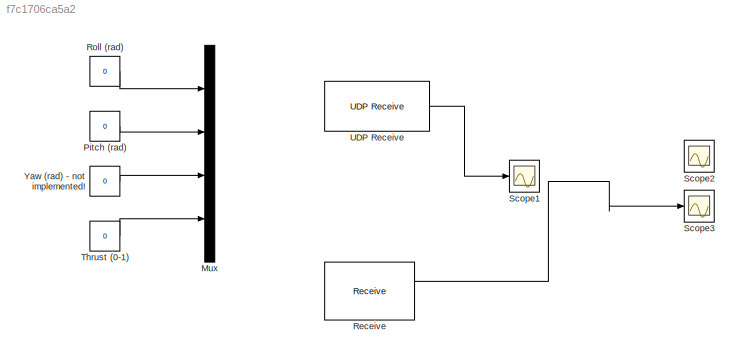
MODEL slx_f7c1706ca5a2
KIND model
CONFIG AbsTol = auto
CONFIG FixedStep = 0.01
CONFIG MaxStep = auto
CONFIG MinStep = auto
CONFIG RelTol = 1e-3
CONFIG SampleTimeConstraint = Unconstrained
CONFIG Solver = ode4
CONFIG SolverMode = Auto
CONFIG SolverName = ode4
CONFIG StartTime = 0.0
CONFIG StopTime = inf
BLOCK [Mux] Mux
  DisplayOption = bar
  Ports = [4, 1]
BLOCK [Constant] Pitch (rad)
  Value = 0
BLOCK [Reference] Receive   REF=xpcrtudplib/Legacy UDP/Receive 
  Commented = on
  Ports = [0, 2]
  SourceBlock = xpcrtudplib/Legacy UDP/Receive
  SourceType = xpcudpbytereceive
  ipAddress = 127.0.0.1
  ipPort = 49000
  sampletime = 0.01
  vblLen = off
  width = 100
BLOCK [Constant] Roll (rad)
  Value = 0
BLOCK [Scope] Scope1
  DataFormat = StructureWithTime
  Floating = off
  NumInputPorts = 1
  Ports = [1]
  SampleTime = 0
  SaveName = ScopeData1
  YMax = 0.1
  YMin = -0.1
BLOCK [Scope] Scope2
  DataFormat = StructureWithTime
  Floating = off
  NumInputPorts = 1
  Ports = [1]
  SampleTime = 0
  YMax = 0.15
  YMin = -0.85
BLOCK [Scope] Scope3
  DataFormat = StructureWithTime
  Floating = off
  NumInputPorts = 1
  Ports = [1]
  SampleTime = 0
  SaveName = ScopeData3
  YMax = 0.15
  YMin = -0.85
BLOCK [Constant] Thrust (0-1)
  Value = 0
BLOCK [Reference] UDP Receive  REF=dspnetwork/UDP Receive
  Ports = [0, 1]
  SourceBlock = dspnetwork/UDP Receive
  SourceType = UDP Receive
  blockingTime = 0
  dims = 255
  isVarSize = on
  localPort = 49000
  localURL = '0.0.0.0'
  recvBufferSize = 8192
  remotePort = -1
  remoteURL = '127.0.0.1'
  sampletime = 1
  showBlockingTime = off
  signalDatatype = single
BLOCK [Constant] Yaw (rad) - not implemented!
  Value = 0
LINE Pitch (rad):1 -> Mux:2
LINE Receive :1 -> Scope3:1
LINE Roll (rad):1 -> Mux:1
LINE Thrust (0-1):1 -> Mux:4
LINE UDP Receive:1 -> Scope1:1
LINE Yaw (rad) - not implemented!:1 -> Mux:3
